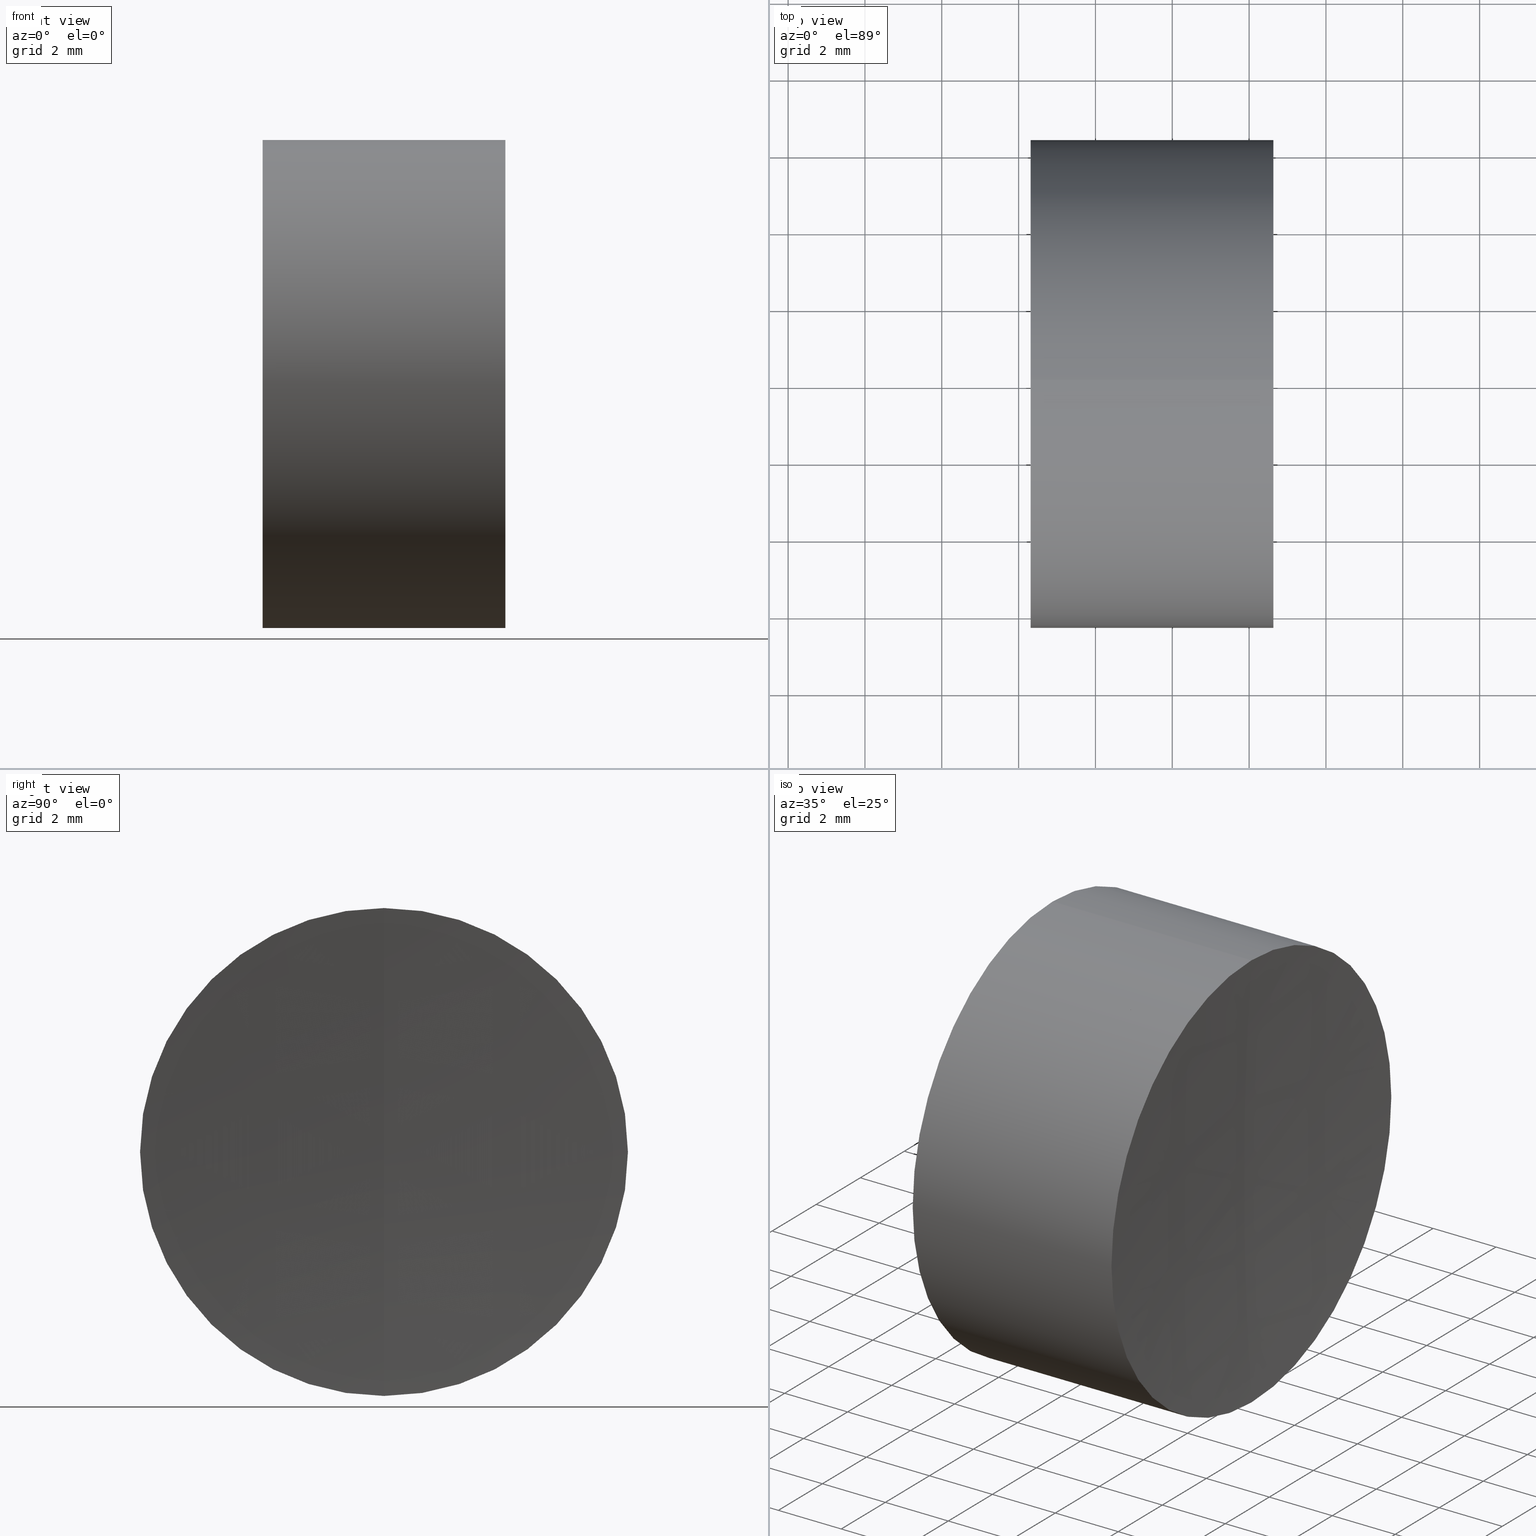
[diagram: canonical four-view strip — front | top / right | iso, engineering-drawing reading convention]
A machine part, canonical four-view strip (front | top / right | iso — engineering-drawing reading convention). The complete STEP part file that produces these views, byte-faithful:
ISO-10303-21;
HEADER;
FILE_DESCRIPTION (( 'STEP AP214' ),
    '1' );
FILE_NAME ('145189.STEP',
    '2019-06-13T05:10:15',
    ( 'user' ),
    ( '΢���й�' ),
    'SwSTEP 2.0',
    'SolidWorks 2016',
    '' );
FILE_SCHEMA (( 'AUTOMOTIVE_DESIGN' ));
ENDSEC;

DATA;
#1 = LINE ( 'NONE', #183, #221 ) ;
#2 = PRODUCT_DEFINITION ( 'δ֪', '', #312, #27 ) ;
#3 = SURFACE_STYLE_USAGE ( .BOTH. , #14 ) ;
#4 = EDGE_LOOP ( 'NONE', ( #119, #29, #185, #110 ) ) ;
#5 = STYLED_ITEM ( 'NONE', ( #86 ), #122 ) ;
#6 = ORIENTED_EDGE ( 'NONE', *, *, #38, .F. ) ;
#7 = CIRCLE ( 'NONE', #263, 14.30000000000000100 ) ;
#8 = PRESENTATION_LAYER_ASSIGNMENT (  '', '', ( #232 ) ) ;
#9 = DIRECTION ( 'NONE',  ( -1.000000000000000000, -0.0000000000000000000, 1.836970198721029700E-016 ) ) ;
#10 = ADVANCED_FACE ( 'NONE', ( #251 ), #297, .F. ) ;
#11 = DIRECTION ( 'NONE',  ( 0.0000000000000000000, 0.0000000000000000000, 1.000000000000000000 ) ) ;
#12 =( NAMED_UNIT ( * ) PLANE_ANGLE_UNIT ( ) SI_UNIT ( $, .RADIAN. ) );
#13 = EDGE_LOOP ( 'NONE', ( #214, #299, #101 ) ) ;
#14 = SURFACE_SIDE_STYLE ('',( #153 ) ) ;
#15 = DIRECTION ( 'NONE',  ( 0.0000000000000000000, 0.0000000000000000000, -1.000000000000000000 ) ) ;
#16 = CIRCLE ( 'NONE', #292, 6.349999999999998800 ) ;
#17 = DIRECTION ( 'NONE',  ( 0.0000000000000000000, 0.0000000000000000000, -1.000000000000000000 ) ) ;
#18 = DIRECTION ( 'NONE',  ( 0.0000000000000000000, 0.0000000000000000000, 1.000000000000000000 ) ) ;
#19 = AXIS2_PLACEMENT_3D ( 'NONE', #266, #180, #176 ) ;
#20 = CARTESIAN_POINT ( 'NONE',  ( 228.3139323085608800, 0.0000000000000000000, 0.0000000000000000000 ) ) ;
#21 = ORIENTED_EDGE ( 'NONE', *, *, #131, .F. ) ;
#22 = CARTESIAN_POINT ( 'NONE',  ( 232.8878128593976600, 0.0000000000000000000, 0.0000000000000000000 ) ) ;
#23 = DIRECTION ( 'NONE',  ( -0.0000000000000000000, -1.000000000000000000, -0.0000000000000000000 ) ) ;
#24 = SURFACE_STYLE_FILL_AREA ( #75 ) ;
#25 = PRESENTATION_STYLE_ASSIGNMENT (( #186 ) ) ;
#26 = AXIS2_PLACEMENT_3D ( 'NONE', #229, #199, #157 ) ;
#27 = PRODUCT_DEFINITION_CONTEXT ( 'detailed design', #243, 'design' ) ;
#28 = DIRECTION ( 'NONE',  ( 0.0000000000000000000, -1.224646799147353200E-016, 1.000000000000000000 ) ) ;
#29 = ORIENTED_EDGE ( 'NONE', *, *, #219, .T. ) ;
#30 = CARTESIAN_POINT ( 'NONE',  ( 232.8878128593976600, 0.0000000000000000000, 0.0000000000000000000 ) ) ;
#31 = FACE_OUTER_BOUND ( 'NONE', #13, .T. ) ;
#32 = FILL_AREA_STYLE_COLOUR ( '', #294 ) ;
#33 =( GEOMETRIC_REPRESENTATION_CONTEXT ( 3 ) GLOBAL_UNCERTAINTY_ASSIGNED_CONTEXT ( ( #92 ) ) GLOBAL_UNIT_ASSIGNED_CONTEXT ( ( #143, #12, #259 ) ) REPRESENTATION_CONTEXT ( 'NONE', 'WORKASPACE' ) );
#34 = CYLINDRICAL_SURFACE ( 'NONE', #89, 6.350000000000042300 ) ;
#35 = CARTESIAN_POINT ( 'NONE',  ( 228.3139323085608800, 7.776507174585687200E-016, -6.349999999999995200 ) ) ;
#36 = UNCERTAINTY_MEASURE_WITH_UNIT (LENGTH_MEASURE( 1.000000000000000100E-005 ), #98, 'distance_accuracy_value', 'NONE');
#37 = EDGE_CURVE ( 'NONE', #220, #242, #163, .T. ) ;
#38 = EDGE_CURVE ( 'NONE', #311, #126, #304, .T. ) ;
#39 = EDGE_LOOP ( 'NONE', ( #274, #64, #285, #342 ) ) ;
#40 = CARTESIAN_POINT ( 'NONE',  ( 216.4005994415584600, 0.0000000000000000000, -1.048218187111863300E-025 ) ) ;
#41 = DIRECTION ( 'NONE',  ( 0.0000000000000000000, 0.0000000000000000000, 1.000000000000000000 ) ) ;
#42 =( NAMED_UNIT ( * ) SI_UNIT ( $, .STERADIAN. ) SOLID_ANGLE_UNIT ( ) );
#43 = DIRECTION ( 'NONE',  ( 0.0000000000000000000, 0.0000000000000000000, 1.000000000000000000 ) ) ;
#44 = EDGE_CURVE ( 'NONE', #323, #139, #78, .T. ) ;
#45 = DIRECTION ( 'NONE',  ( 0.0000000000000000000, 0.0000000000000000000, -1.000000000000000000 ) ) ;
#46 =( LENGTH_UNIT ( ) NAMED_UNIT ( * ) SI_UNIT ( .MILLI., .METRE. ) );
#47 = DIRECTION ( 'NONE',  ( 0.0000000000000000000, 0.0000000000000000000, 1.000000000000000000 ) ) ;
#48 = DIRECTION ( 'NONE',  ( -1.000000000000000000, -0.0000000000000000000, -0.0000000000000000000 ) ) ;
#49 = FACE_OUTER_BOUND ( 'NONE', #137, .T. ) ;
#50 = AXIS2_PLACEMENT_3D ( 'NONE', #140, #9, #306 ) ;
#51 = EDGE_LOOP ( 'NONE', ( #257, #129, #260 ) ) ;
#52 = AXIS2_PLACEMENT_3D ( 'NONE', #209, #283, #43 ) ;
#53 = EDGE_LOOP ( 'NONE', ( #85, #208, #210, #6 ) ) ;
#54 = EDGE_CURVE ( 'NONE', #126, #139, #65, .T. ) ;
#55 = CARTESIAN_POINT ( 'NONE',  ( 228.3139323085608800, 0.0000000000000000000, -4.209049715015568400E-014 ) ) ;
#56 = SPHERICAL_SURFACE ( 'NONE', #235, 13.49999999999999800 ) ;
#57 = EDGE_CURVE ( 'NONE', #136, #338, #1, .T. ) ;
#58 = ORIENTED_EDGE ( 'NONE', *, *, #201, .T. ) ;
#59 = SPHERICAL_SURFACE ( 'NONE', #52, 14.30000000000000100 ) ;
#60 = CARTESIAN_POINT ( 'NONE',  ( 234.6302652343706800, 0.0000000000000000000, 6.349999999999998800 ) ) ;
#61 = PRESENTATION_LAYER_ASSIGNMENT (  '', '', ( #144 ) ) ;
#62 = DIRECTION ( 'NONE',  ( 0.0000000000000000000, 0.0000000000000000000, -1.000000000000000000 ) ) ;
#63 = EDGE_CURVE ( 'NONE', #242, #191, #325, .T. ) ;
#64 = ORIENTED_EDGE ( 'NONE', *, *, #37, .T. ) ;
#65 = CIRCLE ( 'NONE', #26, 6.350000000000042300 ) ;
#66 = EDGE_CURVE ( 'NONE', #139, #126, #200, .T. ) ;
#67 = ORIENTED_EDGE ( 'NONE', *, *, #298, .T. ) ;
#68 = AXIS2_PLACEMENT_3D ( 'NONE', #212, #264, #17 ) ;
#69 = ADVANCED_FACE ( 'NONE', ( #165 ), #83, .T. ) ;
#70 = CARTESIAN_POINT ( 'NONE',  ( 232.8878128593976600, 0.0000000000000000000, -4.293070537659537300E-014 ) ) ;
#71 = EDGE_CURVE ( 'NONE', #338, #191, #7, .T. ) ;
#72 = UNCERTAINTY_MEASURE_WITH_UNIT (LENGTH_MEASURE( 1.000000000000000100E-005 ), #46, 'distance_accuracy_value', 'NONE');
#73 = ORIENTED_EDGE ( 'NONE', *, *, #238, .F. ) ;
#74 = VECTOR ( 'NONE', #76, 1000.000000000000000 ) ;
#75 = FILL_AREA_STYLE ('',( #245 ) ) ;
#76 = DIRECTION ( 'NONE',  ( -1.000000000000000000, -0.0000000000000000000, -0.0000000000000000000 ) ) ;
#77 = DIRECTION ( 'NONE',  ( 0.0000000000000000000, -1.224646799147353200E-016, 1.000000000000000000 ) ) ;
#78 = LINE ( 'NONE', #142, #343 ) ;
#79 = DIRECTION ( 'NONE',  ( -1.000000000000000000, -0.0000000000000000000, 1.836970198721029700E-016 ) ) ;
#80 = PRODUCT_RELATED_PRODUCT_CATEGORY ( 'part', '', ( #118 ) ) ;
#81 = CARTESIAN_POINT ( 'NONE',  ( 232.8878128593976600, 0.0000000000000000000, 6.349999999999999600 ) ) ;
#82 = ORIENTED_EDGE ( 'NONE', *, *, #66, .T. ) ;
#83 = CYLINDRICAL_SURFACE ( 'NONE', #331, 6.350000000000042300 ) ;
#84 = AXIS2_PLACEMENT_3D ( 'NONE', #269, #96, #15 ) ;
#85 = ORIENTED_EDGE ( 'NONE', *, *, #309, .T. ) ;
#86 = PRESENTATION_STYLE_ASSIGNMENT (( #276 ) ) ;
#87 = COLOUR_RGB ( '',1.000000000000000000, 1.000000000000000000, 1.000000000000000000 ) ;
#88 = CARTESIAN_POINT ( 'NONE',  ( 228.3139323085608800, 0.0000000000000000000, 6.349999999999999600 ) ) ;
#89 = AXIS2_PLACEMENT_3D ( 'NONE', #166, #272, #207 ) ;
#90 = ORIENTED_EDGE ( 'NONE', *, *, #273, .F. ) ;
#91 = ADVANCED_FACE ( 'NONE', ( #156 ), #258, .F. ) ;
#92 = UNCERTAINTY_MEASURE_WITH_UNIT (LENGTH_MEASURE( 1.000000000000000100E-005 ), #143, 'distance_accuracy_value', 'NONE');
#93 = CARTESIAN_POINT ( 'NONE',  ( 231.4005994415584600, 0.0000000000000000000, 1.751244922675847100E-015 ) ) ;
#94 = ORIENTED_EDGE ( 'NONE', *, *, #298, .F. ) ;
#95 = CARTESIAN_POINT ( 'NONE',  ( 322.3005994415584600, 0.0000000000000000000, 0.0000000000000000000 ) ) ;
#96 = DIRECTION ( 'NONE',  ( -0.0000000000000000000, -1.000000000000000000, -0.0000000000000000000 ) ) ;
#97 = DIRECTION ( 'NONE',  ( 0.0000000000000000000, 0.0000000000000000000, 1.000000000000000000 ) ) ;
#98 =( LENGTH_UNIT ( ) NAMED_UNIT ( * ) SI_UNIT ( .MILLI., .METRE. ) );
#99 = CARTESIAN_POINT ( 'NONE',  ( 234.4005994415584800, 0.0000000000000000000, -5.382322682252618100E-015 ) ) ;
#100 = EDGE_CURVE ( 'NONE', #136, #220, #16, .T. ) ;
#101 = ORIENTED_EDGE ( 'NONE', *, *, #71, .F. ) ;
#102 = CARTESIAN_POINT ( 'NONE',  ( 231.4005994415584600, 0.0000000000000000000, 8.756224612854891400E-016 ) ) ;
#103 =( LENGTH_UNIT ( ) NAMED_UNIT ( * ) SI_UNIT ( .MILLI., .METRE. ) );
#104 = FACE_OUTER_BOUND ( 'NONE', #53, .T. ) ;
#105 = ORIENTED_EDGE ( 'NONE', *, *, #309, .F. ) ;
#106 = SPHERICAL_SURFACE ( 'NONE', #68, 14.30000000000000600 ) ;
#107 = DIRECTION ( 'NONE',  ( 0.0000000000000000000, 1.000000000000000000, 0.0000000000000000000 ) ) ;
#108 =( GEOMETRIC_REPRESENTATION_CONTEXT ( 3 ) GLOBAL_UNCERTAINTY_ASSIGNED_CONTEXT ( ( #36 ) ) GLOBAL_UNIT_ASSIGNED_CONTEXT ( ( #98, #335, #149 ) ) REPRESENTATION_CONTEXT ( 'NONE', 'WORKASPACE' ) );
#109 = CIRCLE ( 'NONE', #182, 14.30000000000000600 ) ;
#110 = ORIENTED_EDGE ( 'NONE', *, *, #66, .F. ) ;
#111 = AXIS2_PLACEMENT_3D ( 'NONE', #190, #115, #11 ) ;
#112 = DIRECTION ( 'NONE',  ( 0.0000000000000000000, 1.224646799147353200E-016, -1.000000000000000000 ) ) ;
#113 = CIRCLE ( 'NONE', #125, 87.90000000000000600 ) ;
#114 = ADVANCED_FACE ( 'NONE', ( #261 ), #275, .F. ) ;
#115 = DIRECTION ( 'NONE',  ( -0.0000000000000000000, 1.000000000000000000, 0.0000000000000000000 ) ) ;
#116 = CLOSED_SHELL ( 'NONE', ( #114, #223, #324, #168, #141, #91 ) ) ;
#117 = DIRECTION ( 'NONE',  ( 1.878145495644168500E-016, 0.0000000000000000000, 1.000000000000000000 ) ) ;
#118 = PRODUCT ( '145189', '145189', '', ( #124 ) ) ;
#119 = ORIENTED_EDGE ( 'NONE', *, *, #44, .F. ) ;
#120 = SURFACE_SIDE_STYLE ('',( #24 ) ) ;
#121 = CARTESIAN_POINT ( 'NONE',  ( 234.6302652343706800, 7.776507174585690200E-016, -6.349999999999997900 ) ) ;
#122 = MANIFOLD_SOLID_BREP ( '��ת3', #116 ) ;
#123 = CIRCLE ( 'NONE', #225, 13.49999999999999800 ) ;
#124 = PRODUCT_CONTEXT ( 'NONE', #305, 'mechanical' ) ;
#125 = AXIS2_PLACEMENT_3D ( 'NONE', #195, #290, #112 ) ;
#126 = VERTEX_POINT ( 'NONE', #88 ) ;
#127 = CIRCLE ( 'NONE', #341, 6.349999999999991700 ) ;
#128 = CARTESIAN_POINT ( 'NONE',  ( 245.7005994415584700, 0.0000000000000000000, -1.048684502899648100E-025 ) ) ;
#129 = ORIENTED_EDGE ( 'NONE', *, *, #301, .T. ) ;
#130 = AXIS2_PLACEMENT_3D ( 'NONE', #322, #247, #47 ) ;
#131 = EDGE_CURVE ( 'NONE', #220, #224, #293, .T. ) ;
#132 = CIRCLE ( 'NONE', #314, 6.349999999999998800 ) ;
#133 = ORIENTED_EDGE ( 'NONE', *, *, #215, .T. ) ;
#134 = DIRECTION ( 'NONE',  ( -1.000000000000000000, -0.0000000000000000000, 1.836970198721029700E-016 ) ) ;
#135 = EDGE_CURVE ( 'NONE', #338, #242, #127, .T. ) ;
#136 = VERTEX_POINT ( 'NONE', #60 ) ;
#137 = EDGE_LOOP ( 'NONE', ( #94, #265, #82 ) ) ;
#138 = AXIS2_PLACEMENT_3D ( 'NONE', #30, #282, #150 ) ;
#139 = VERTEX_POINT ( 'NONE', #337 ) ;
#140 = CARTESIAN_POINT ( 'NONE',  ( 232.8878128593976600, 0.0000000000000000000, -4.293070537659537300E-014 ) ) ;
#141 = ADVANCED_FACE ( 'NONE', ( #237 ), #160, .T. ) ;
#142 = CARTESIAN_POINT ( 'NONE',  ( -0.8160621761658051200, 7.776507174585744400E-016, -6.350000000000042300 ) ) ;
#143 =( LENGTH_UNIT ( ) NAMED_UNIT ( * ) SI_UNIT ( .MILLI., .METRE. ) );
#144 = STYLED_ITEM ( 'NONE', ( #222 ), #244 ) ;
#145 = ORIENTED_EDGE ( 'NONE', *, *, #215, .F. ) ;
#146 = CARTESIAN_POINT ( 'NONE',  ( 232.8878128593976600, 7.776507174585744400E-016, -6.350000000000084900 ) ) ;
#147 = COLOUR_RGB ( '',1.000000000000000000, 1.000000000000000000, 1.000000000000000000 ) ;
#148 = DIRECTION ( 'NONE',  ( 0.0000000000000000000, 0.0000000000000000000, 1.000000000000000000 ) ) ;
#149 =( NAMED_UNIT ( * ) SI_UNIT ( $, .STERADIAN. ) SOLID_ANGLE_UNIT ( ) );
#150 = DIRECTION ( 'NONE',  ( 0.0000000000000000000, 0.0000000000000000000, 1.000000000000000000 ) ) ;
#151 = EDGE_LOOP ( 'NONE', ( #169, #145, #155 ) ) ;
#152 = FACE_OUTER_BOUND ( 'NONE', #51, .T. ) ;
#153 = SURFACE_STYLE_FILL_AREA ( #196 ) ;
#154 = DIRECTION ( 'NONE',  ( 0.0000000000000000000, 0.0000000000000000000, 1.000000000000000000 ) ) ;
#155 = ORIENTED_EDGE ( 'NONE', *, *, #131, .T. ) ;
#156 = FACE_OUTER_BOUND ( 'NONE', #151, .T. ) ;
#157 = DIRECTION ( 'NONE',  ( 0.0000000000000000000, 0.0000000000000000000, 1.000000000000000000 ) ) ;
#158 = ORIENTED_EDGE ( 'NONE', *, *, #273, .T. ) ;
#159 =( NAMED_UNIT ( * ) PLANE_ANGLE_UNIT ( ) SI_UNIT ( $, .RADIAN. ) );
#160 = CYLINDRICAL_SURFACE ( 'NONE', #254, 6.349999999999995200 ) ;
#161 = ORIENTED_EDGE ( 'NONE', *, *, #219, .F. ) ;
#162 = AXIS2_PLACEMENT_3D ( 'NONE', #213, #107, #41 ) ;
#163 = LINE ( 'NONE', #35, #74 ) ;
#164 = AXIS2_PLACEMENT_3D ( 'NONE', #345, #271, #62 ) ;
#165 = FACE_OUTER_BOUND ( 'NONE', #4, .T. ) ;
#166 = CARTESIAN_POINT ( 'NONE',  ( -0.8160621761658039000, 0.0000000000000000000, 0.0000000000000000000 ) ) ;
#167 = DIRECTION ( 'NONE',  ( 0.0000000000000000000, 0.0000000000000000000, 1.000000000000000000 ) ) ;
#168 = ADVANCED_FACE ( 'NONE', ( #152 ), #59, .T. ) ;
#169 = ORIENTED_EDGE ( 'NONE', *, *, #201, .F. ) ;
#170 = AXIS2_PLACEMENT_3D ( 'NONE', #70, #202, #18 ) ;
#171 = CARTESIAN_POINT ( 'NONE',  ( 234.6302652343706800, 0.0000000000000000000, 0.0000000000000000000 ) ) ;
#172 = DIRECTION ( 'NONE',  ( -0.0000000000000000000, 1.000000000000000000, 0.0000000000000000000 ) ) ;
#173 = SPHERICAL_SURFACE ( 'NONE', #162, 14.30000000000000100 ) ;
#174 = DIRECTION ( 'NONE',  ( -0.0000000000000000000, 1.000000000000000000, 1.224646799147353200E-016 ) ) ;
#175 = AXIS2_PLACEMENT_3D ( 'NONE', #240, #154, #295 ) ;
#176 = DIRECTION ( 'NONE',  ( 0.0000000000000000000, 0.0000000000000000000, 1.000000000000000000 ) ) ;
#177 = EDGE_LOOP ( 'NONE', ( #339, #133, #291, #256 ) ) ;
#178 =( NAMED_UNIT ( * ) PLANE_ANGLE_UNIT ( ) SI_UNIT ( $, .RADIAN. ) );
#179 = MECHANICAL_DESIGN_GEOMETRIC_PRESENTATION_REPRESENTATION (  '', ( #144 ), #327 ) ;
#180 = DIRECTION ( 'NONE',  ( 0.0000000000000000000, 1.000000000000000000, -0.0000000000000000000 ) ) ;
#181 = DIRECTION ( 'NONE',  ( 0.0000000000000000000, 0.0000000000000000000, 1.000000000000000000 ) ) ;
#182 = AXIS2_PLACEMENT_3D ( 'NONE', #187, #234, #316 ) ;
#183 = CARTESIAN_POINT ( 'NONE',  ( 228.3139323085608800, 0.0000000000000000000, 6.349999999999995200 ) ) ;
#184 = CYLINDRICAL_SURFACE ( 'NONE', #130, 6.349999999999995200 ) ;
#185 = ORIENTED_EDGE ( 'NONE', *, *, #38, .T. ) ;
#186 = SURFACE_STYLE_USAGE ( .BOTH. , #204 ) ;
#187 = CARTESIAN_POINT ( 'NONE',  ( 245.7005994415584700, 0.0000000000000000000, -1.048684502899648100E-025 ) ) ;
#188 = VERTEX_POINT ( 'NONE', #329 ) ;
#189 = CIRCLE ( 'NONE', #164, 13.49999999999999800 ) ;
#190 = CARTESIAN_POINT ( 'NONE',  ( 245.7005994415584700, 0.0000000000000000000, -1.048684502899648100E-025 ) ) ;
#191 = VERTEX_POINT ( 'NONE', #102 ) ;
#192 = MECHANICAL_DESIGN_GEOMETRIC_PRESENTATION_REPRESENTATION (  '', ( #5 ), #108 ) ;
#193 = EDGE_LOOP ( 'NONE', ( #218, #58, #21 ) ) ;
#194 = ADVANCED_FACE ( 'NONE', ( #281 ), #321, .F. ) ;
#195 = CARTESIAN_POINT ( 'NONE',  ( 322.3005994415584600, 0.0000000000000000000, 0.0000000000000000000 ) ) ;
#196 = FILL_AREA_STYLE ('',( #32 ) ) ;
#197 = DIRECTION ( 'NONE',  ( -1.000000000000000000, -0.0000000000000000000, 1.836970198721029700E-016 ) ) ;
#198 = APPLICATION_PROTOCOL_DEFINITION ( 'draft international standard', 'automotive_design', 1998, #243 ) ;
#199 = DIRECTION ( 'NONE',  ( -1.000000000000000000, -0.0000000000000000000, 1.836970198721029700E-016 ) ) ;
#200 = CIRCLE ( 'NONE', #320, 6.350000000000042300 ) ;
#201 = EDGE_CURVE ( 'NONE', #136, #224, #113, .T. ) ;
#202 = DIRECTION ( 'NONE',  ( -1.000000000000000000, -0.0000000000000000000, 1.836970198721029700E-016 ) ) ;
#203 = DIRECTION ( 'NONE',  ( 0.0000000000000000000, 0.0000000000000000000, -1.000000000000000000 ) ) ;
#204 = SURFACE_SIDE_STYLE ('',( #315 ) ) ;
#205 = CARTESIAN_POINT ( 'NONE',  ( 245.7005994415584700, 0.0000000000000000000, -1.048684502899648100E-025 ) ) ;
#206 = PRODUCT_DEFINITION_SHAPE ( 'NONE', 'NONE',  #2 ) ;
#207 = DIRECTION ( 'NONE',  ( 1.878145495644168500E-016, 0.0000000000000000000, 1.000000000000000000 ) ) ;
#208 = ORIENTED_EDGE ( 'NONE', *, *, #44, .T. ) ;
#209 = CARTESIAN_POINT ( 'NONE',  ( 245.7005994415584700, 0.0000000000000000000, -1.048684502899648100E-025 ) ) ;
#210 = ORIENTED_EDGE ( 'NONE', *, *, #54, .F. ) ;
#211 = APPLICATION_PROTOCOL_DEFINITION ( 'draft international standard', 'automotive_design', 1998, #305 ) ;
#212 = CARTESIAN_POINT ( 'NONE',  ( 245.7005994415584700, 0.0000000000000000000, -1.048684502899648100E-025 ) ) ;
#213 = CARTESIAN_POINT ( 'NONE',  ( 245.7005994415584700, 0.0000000000000000000, -1.048684502899648100E-025 ) ) ;
#214 = ORIENTED_EDGE ( 'NONE', *, *, #135, .T. ) ;
#215 = EDGE_CURVE ( 'NONE', #220, #136, #132, .T. ) ;
#216 = CARTESIAN_POINT ( 'NONE',  ( 216.4005994415584600, 0.0000000000000000000, -1.048218187111863300E-025 ) ) ;
#217 = EDGE_LOOP ( 'NONE', ( #105, #158, #280 ) ) ;
#218 = ORIENTED_EDGE ( 'NONE', *, *, #100, .F. ) ;
#219 = EDGE_CURVE ( 'NONE', #323, #311, #317, .T. ) ;
#220 = VERTEX_POINT ( 'NONE', #121 ) ;
#221 = VECTOR ( 'NONE', #284, 1000.000000000000000 ) ;
#222 = PRESENTATION_STYLE_ASSIGNMENT (( #3 ) ) ;
#223 = ADVANCED_FACE ( 'NONE', ( #310 ), #184, .T. ) ;
#224 = VERTEX_POINT ( 'NONE', #99 ) ;
#225 = AXIS2_PLACEMENT_3D ( 'NONE', #319, #236, #28 ) ;
#226 = VERTEX_POINT ( 'NONE', #93 ) ;
#227 = DIRECTION ( 'NONE',  ( 0.0000000000000000000, 0.0000000000000000000, 1.000000000000000000 ) ) ;
#228 = DIRECTION ( 'NONE',  ( 0.0000000000000000000, 0.0000000000000000000, -1.000000000000000000 ) ) ;
#229 = CARTESIAN_POINT ( 'NONE',  ( 228.3139323085608800, 0.0000000000000000000, -4.209049715015568400E-014 ) ) ;
#230 = CARTESIAN_POINT ( 'NONE',  ( -0.8160621761658027900, 0.0000000000000000000, 6.350000000000042300 ) ) ;
#231 = ORIENTED_EDGE ( 'NONE', *, *, #54, .T. ) ;
#232 = STYLED_ITEM ( 'NONE', ( #25 ), #313 ) ;
#233 = EDGE_CURVE ( 'NONE', #323, #226, #336, .T. ) ;
#234 = DIRECTION ( 'NONE',  ( -2.249639673992786400E-032, -1.000000000000000000, -1.224646799147353200E-016 ) ) ;
#235 = AXIS2_PLACEMENT_3D ( 'NONE', #40, #278, #288 ) ;
#236 = DIRECTION ( 'NONE',  ( 2.249639673992786400E-032, 1.000000000000000000, 1.224646799147353200E-016 ) ) ;
#237 = FACE_OUTER_BOUND ( 'NONE', #177, .T. ) ;
#238 = EDGE_CURVE ( 'NONE', #188, #139, #123, .T. ) ;
#239 = AXIS2_PLACEMENT_3D ( 'NONE', #308, #23, #203 ) ;
#240 = CARTESIAN_POINT ( 'NONE',  ( 0.0000000000000000000, 0.0000000000000000000, 0.0000000000000000000 ) ) ;
#241 = ADVANCED_FACE ( 'NONE', ( #49 ), #56, .F. ) ;
#242 = VERTEX_POINT ( 'NONE', #296 ) ;
#243 = APPLICATION_CONTEXT ( 'automotive_design' ) ;
#244 = ADVANCED_BREP_SHAPE_REPRESENTATION ( '145189', ( #313, #122, #175 ), #252 ) ;
#245 = FILL_AREA_STYLE_COLOUR ( '', #147 ) ;
#246 = EDGE_LOOP ( 'NONE', ( #90, #161, #333 ) ) ;
#247 = DIRECTION ( 'NONE',  ( -1.000000000000000000, -0.0000000000000000000, -0.0000000000000000000 ) ) ;
#248 = FILL_AREA_STYLE_COLOUR ( '', #87 ) ;
#249 = FACE_OUTER_BOUND ( 'NONE', #217, .T. ) ;
#250 = EDGE_LOOP ( 'NONE', ( #73, #67, #231 ) ) ;
#251 = FACE_OUTER_BOUND ( 'NONE', #250, .T. ) ;
#252 =( GEOMETRIC_REPRESENTATION_CONTEXT ( 3 ) GLOBAL_UNCERTAINTY_ASSIGNED_CONTEXT ( ( #286 ) ) GLOBAL_UNIT_ASSIGNED_CONTEXT ( ( #103, #178, #253 ) ) REPRESENTATION_CONTEXT ( 'NONE', 'WORKASPACE' ) );
#253 =( NAMED_UNIT ( * ) SI_UNIT ( $, .STERADIAN. ) SOLID_ANGLE_UNIT ( ) );
#254 = AXIS2_PLACEMENT_3D ( 'NONE', #20, #48, #227 ) ;
#255 = CARTESIAN_POINT ( 'NONE',  ( 234.6302652343706800, 0.0000000000000000000, 0.0000000000000000000 ) ) ;
#256 = ORIENTED_EDGE ( 'NONE', *, *, #301, .F. ) ;
#257 = ORIENTED_EDGE ( 'NONE', *, *, #63, .F. ) ;
#258 = SPHERICAL_SURFACE ( 'NONE', #84, 87.90000000000000600 ) ;
#259 =( NAMED_UNIT ( * ) SI_UNIT ( $, .STERADIAN. ) SOLID_ANGLE_UNIT ( ) );
#260 = ORIENTED_EDGE ( 'NONE', *, *, #71, .T. ) ;
#261 = FACE_OUTER_BOUND ( 'NONE', #193, .T. ) ;
#262 = CIRCLE ( 'NONE', #138, 6.349999999999991700 ) ;
#263 = AXIS2_PLACEMENT_3D ( 'NONE', #205, #330, #228 ) ;
#264 = DIRECTION ( 'NONE',  ( -0.0000000000000000000, -1.000000000000000000, -0.0000000000000000000 ) ) ;
#265 = ORIENTED_EDGE ( 'NONE', *, *, #238, .T. ) ;
#266 = CARTESIAN_POINT ( 'NONE',  ( 322.3005994415584600, 0.0000000000000000000, 0.0000000000000000000 ) ) ;
#267 = MECHANICAL_DESIGN_GEOMETRIC_PRESENTATION_REPRESENTATION (  '', ( #232 ), #33 ) ;
#268 = ADVANCED_FACE ( 'NONE', ( #104 ), #34, .T. ) ;
#269 = CARTESIAN_POINT ( 'NONE',  ( 322.3005994415584600, 0.0000000000000000000, 0.0000000000000000000 ) ) ;
#270 = DIRECTION ( 'NONE',  ( -1.000000000000000000, -0.0000000000000000000, -0.0000000000000000000 ) ) ;
#271 = DIRECTION ( 'NONE',  ( 0.0000000000000000000, -1.000000000000000000, 0.0000000000000000000 ) ) ;
#272 = DIRECTION ( 'NONE',  ( -1.000000000000000000, -0.0000000000000000000, 1.836970198721029700E-016 ) ) ;
#273 = EDGE_CURVE ( 'NONE', #311, #226, #109, .T. ) ;
#274 = ORIENTED_EDGE ( 'NONE', *, *, #100, .T. ) ;
#275 = SPHERICAL_SURFACE ( 'NONE', #346, 87.90000000000000600 ) ;
#276 = SURFACE_STYLE_USAGE ( .BOTH. , #120 ) ;
#277 = DIRECTION ( 'NONE',  ( -1.000000000000000000, -0.0000000000000000000, 1.836970198721029700E-016 ) ) ;
#278 = DIRECTION ( 'NONE',  ( -0.0000000000000000000, 1.000000000000000000, 0.0000000000000000000 ) ) ;
#279 = CARTESIAN_POINT ( 'NONE',  ( -0.8160621761658039000, 0.0000000000000000000, 0.0000000000000000000 ) ) ;
#280 = ORIENTED_EDGE ( 'NONE', *, *, #233, .F. ) ;
#281 = FACE_OUTER_BOUND ( 'NONE', #246, .T. ) ;
#282 = DIRECTION ( 'NONE',  ( -1.000000000000000000, -0.0000000000000000000, -0.0000000000000000000 ) ) ;
#283 = DIRECTION ( 'NONE',  ( 0.0000000000000000000, 1.000000000000000000, 0.0000000000000000000 ) ) ;
#284 = DIRECTION ( 'NONE',  ( -1.000000000000000000, -0.0000000000000000000, -0.0000000000000000000 ) ) ;
#285 = ORIENTED_EDGE ( 'NONE', *, *, #135, .F. ) ;
#286 = UNCERTAINTY_MEASURE_WITH_UNIT (LENGTH_MEASURE( 1.000000000000000100E-005 ), #103, 'distance_accuracy_value', 'NONE');
#287 = DIRECTION ( 'NONE',  ( -1.000000000000000000, -0.0000000000000000000, -0.0000000000000000000 ) ) ;
#288 = DIRECTION ( 'NONE',  ( 0.0000000000000000000, 0.0000000000000000000, 1.000000000000000000 ) ) ;
#289 = AXIS2_PLACEMENT_3D ( 'NONE', #128, #174, #77 ) ;
#290 = DIRECTION ( 'NONE',  ( 0.0000000000000000000, -1.000000000000000000, -1.224646799147353200E-016 ) ) ;
#291 = ORIENTED_EDGE ( 'NONE', *, *, #57, .T. ) ;
#292 = AXIS2_PLACEMENT_3D ( 'NONE', #171, #332, #148 ) ;
#293 = CIRCLE ( 'NONE', #19, 87.90000000000000600 ) ;
#294 = COLOUR_RGB ( '',1.000000000000000000, 1.000000000000000000, 1.000000000000000000 ) ;
#295 = DIRECTION ( 'NONE',  ( 1.000000000000000000, 0.0000000000000000000, 0.0000000000000000000 ) ) ;
#296 = CARTESIAN_POINT ( 'NONE',  ( 232.8878128593976600, 7.776507174585682300E-016, -6.349999999999990800 ) ) ;
#297 = SPHERICAL_SURFACE ( 'NONE', #318, 13.49999999999999800 ) ;
#298 = EDGE_CURVE ( 'NONE', #188, #126, #189, .T. ) ;
#299 = ORIENTED_EDGE ( 'NONE', *, *, #63, .T. ) ;
#300 = ADVANCED_FACE ( 'NONE', ( #249 ), #106, .F. ) ;
#301 = EDGE_CURVE ( 'NONE', #242, #338, #262, .T. ) ;
#302 = CLOSED_SHELL ( 'NONE', ( #300, #268, #241, #10, #69, #194 ) ) ;
#303 = DIRECTION ( 'NONE',  ( 0.0000000000000000000, 0.0000000000000000000, 1.000000000000000000 ) ) ;
#304 = LINE ( 'NONE', #230, #334 ) ;
#305 = APPLICATION_CONTEXT ( 'automotive_design' ) ;
#306 = DIRECTION ( 'NONE',  ( 0.0000000000000000000, 0.0000000000000000000, 1.000000000000000000 ) ) ;
#307 = PRESENTATION_LAYER_ASSIGNMENT (  '', '', ( #5 ) ) ;
#308 = CARTESIAN_POINT ( 'NONE',  ( 245.7005994415584700, 0.0000000000000000000, -1.048684502899648100E-025 ) ) ;
#309 = EDGE_CURVE ( 'NONE', #311, #323, #344, .T. ) ;
#310 = FACE_OUTER_BOUND ( 'NONE', #39, .T. ) ;
#311 = VERTEX_POINT ( 'NONE', #81 ) ;
#312 = PRODUCT_DEFINITION_FORMATION_WITH_SPECIFIED_SOURCE ( '�κ�', '', #118, .NOT_KNOWN. ) ;
#313 = MANIFOLD_SOLID_BREP ( '��ת1', #302 ) ;
#314 = AXIS2_PLACEMENT_3D ( 'NONE', #255, #270, #303 ) ;
#315 = SURFACE_STYLE_FILL_AREA ( #347 ) ;
#316 = DIRECTION ( 'NONE',  ( 0.0000000000000000000, 1.224646799147353200E-016, -1.000000000000000000 ) ) ;
#317 = CIRCLE ( 'NONE', #170, 6.350000000000042300 ) ;
#318 = AXIS2_PLACEMENT_3D ( 'NONE', #216, #172, #167 ) ;
#319 = CARTESIAN_POINT ( 'NONE',  ( 216.4005994415584600, 0.0000000000000000000, -1.048218187111863300E-025 ) ) ;
#320 = AXIS2_PLACEMENT_3D ( 'NONE', #55, #134, #181 ) ;
#321 = SPHERICAL_SURFACE ( 'NONE', #239, 14.30000000000000600 ) ;
#322 = CARTESIAN_POINT ( 'NONE',  ( 228.3139323085608800, 0.0000000000000000000, 0.0000000000000000000 ) ) ;
#323 = VERTEX_POINT ( 'NONE', #146 ) ;
#324 = ADVANCED_FACE ( 'NONE', ( #31 ), #173, .T. ) ;
#325 = CIRCLE ( 'NONE', #289, 14.30000000000000100 ) ;
#326 = DIRECTION ( 'NONE',  ( -0.0000000000000000000, -1.000000000000000000, -0.0000000000000000000 ) ) ;
#327 =( GEOMETRIC_REPRESENTATION_CONTEXT ( 3 ) GLOBAL_UNCERTAINTY_ASSIGNED_CONTEXT ( ( #72 ) ) GLOBAL_UNIT_ASSIGNED_CONTEXT ( ( #46, #159, #42 ) ) REPRESENTATION_CONTEXT ( 'NONE', 'WORKASPACE' ) );
#328 = CARTESIAN_POINT ( 'NONE',  ( 232.8878128593976600, 0.0000000000000000000, 6.349999999999990800 ) ) ;
#329 = CARTESIAN_POINT ( 'NONE',  ( 229.9005994415584300, 0.0000000000000000000, -1.653273178953748100E-015 ) ) ;
#330 = DIRECTION ( 'NONE',  ( 0.0000000000000000000, -1.000000000000000000, 0.0000000000000000000 ) ) ;
#331 = AXIS2_PLACEMENT_3D ( 'NONE', #279, #79, #117 ) ;
#332 = DIRECTION ( 'NONE',  ( -1.000000000000000000, -0.0000000000000000000, -0.0000000000000000000 ) ) ;
#333 = ORIENTED_EDGE ( 'NONE', *, *, #233, .T. ) ;
#334 = VECTOR ( 'NONE', #277, 1000.000000000000000 ) ;
#335 =( NAMED_UNIT ( * ) PLANE_ANGLE_UNIT ( ) SI_UNIT ( $, .RADIAN. ) );
#336 = CIRCLE ( 'NONE', #111, 14.30000000000000600 ) ;
#337 = CARTESIAN_POINT ( 'NONE',  ( 228.3139323085608800, 7.776507174585744400E-016, -6.350000000000044900 ) ) ;
#338 = VERTEX_POINT ( 'NONE', #328 ) ;
#339 = ORIENTED_EDGE ( 'NONE', *, *, #37, .F. ) ;
#340 = SHAPE_DEFINITION_REPRESENTATION ( #206, #244 ) ;
#341 = AXIS2_PLACEMENT_3D ( 'NONE', #22, #287, #97 ) ;
#342 = ORIENTED_EDGE ( 'NONE', *, *, #57, .F. ) ;
#343 = VECTOR ( 'NONE', #197, 1000.000000000000000 ) ;
#344 = CIRCLE ( 'NONE', #50, 6.350000000000042300 ) ;
#345 = CARTESIAN_POINT ( 'NONE',  ( 216.4005994415584600, 0.0000000000000000000, -1.048218187111863300E-025 ) ) ;
#346 = AXIS2_PLACEMENT_3D ( 'NONE', #95, #326, #45 ) ;
#347 = FILL_AREA_STYLE ('',( #248 ) ) ;
ENDSEC;
END-ISO-10303-21;
